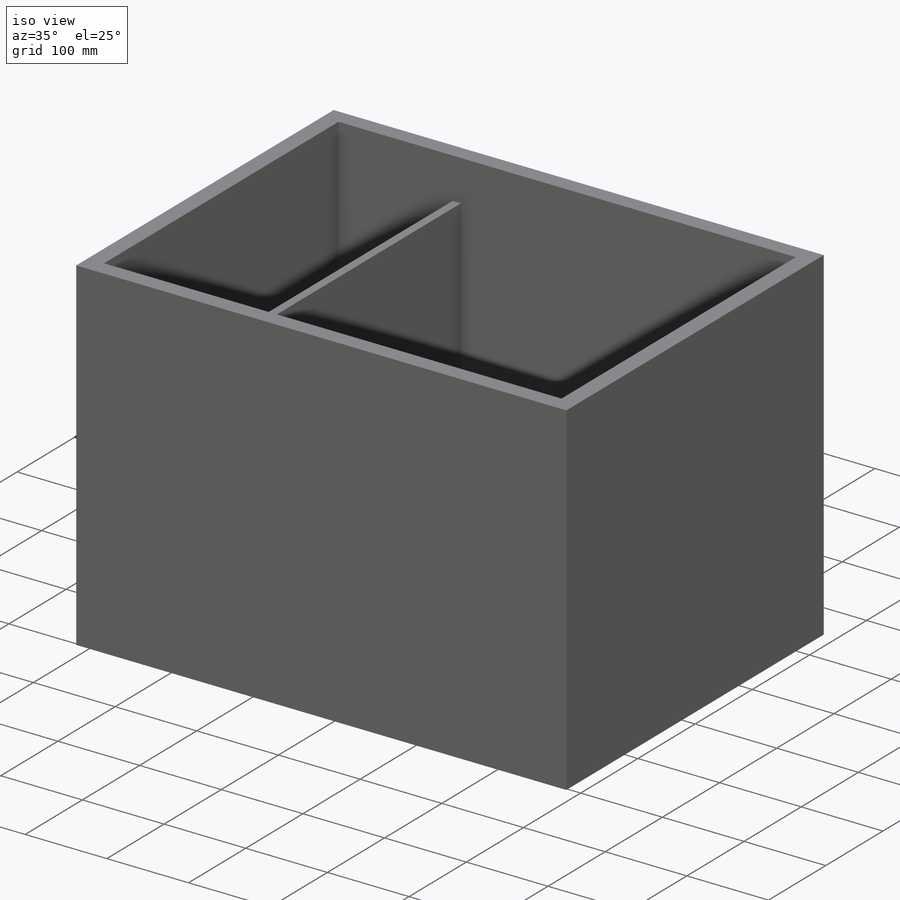
[diagram: iso view]
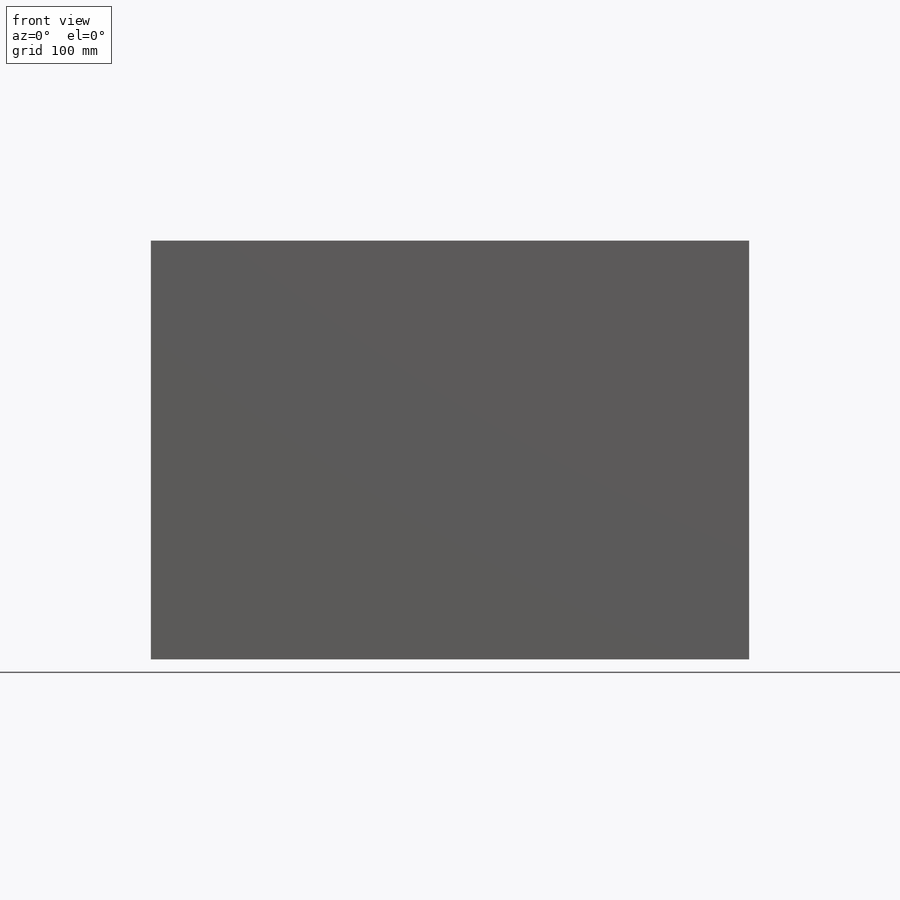
[diagram: front view]
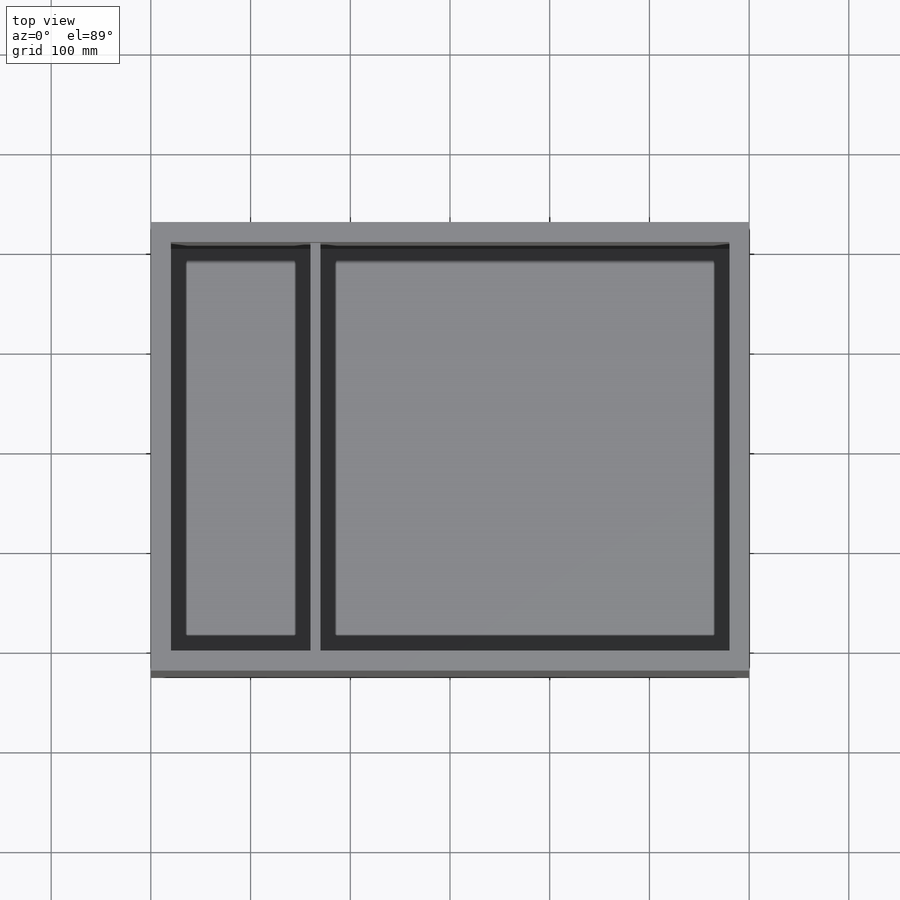
[diagram: top view]
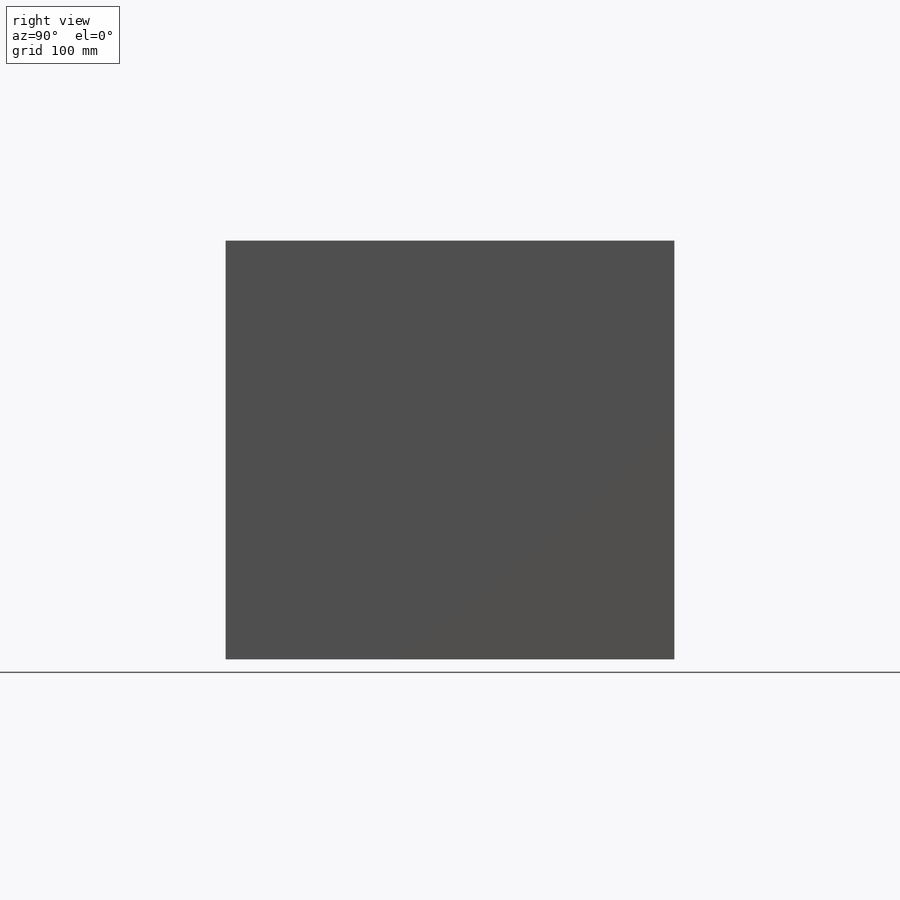
[diagram: right view]
SOLIDWORKS PART (.sldprt)
format: sldprt  version: not decoded by parser v0  size: 184,832 bytes
history: native  units: mm
features: sketch x4, extrude x3, material x1, cut_extrude x1 (+13 scaffold rows collapsed)
feature tree (22):
  scaffold x13  (default folders/planes/origin — collapsed)
  material  "Material <not specified>"
  sketch  "Sketch1"  dims[D1=560.0mm D2=410.0mm D3=20.0mm]
  extrude  "Boss-Extrude1"  Depth=400mm
  sketch  "Sketch2"
  extrude  "Boss-Extrude2"  Depth=20mm
  sketch  "Sketch4"  dims[D1=140.0mm D2=10.0mm]
  extrude  "Boss-Extrude4"  Depth=350mm
  sketch  "Sketch5"
  cut_extrude  "Cut-Extrude1"  Depth=50mm
decode coverage: 6 of 8 modeling features carry decoded parameters
note: suppression state not decoded; provenance and decode notes live in map.json
